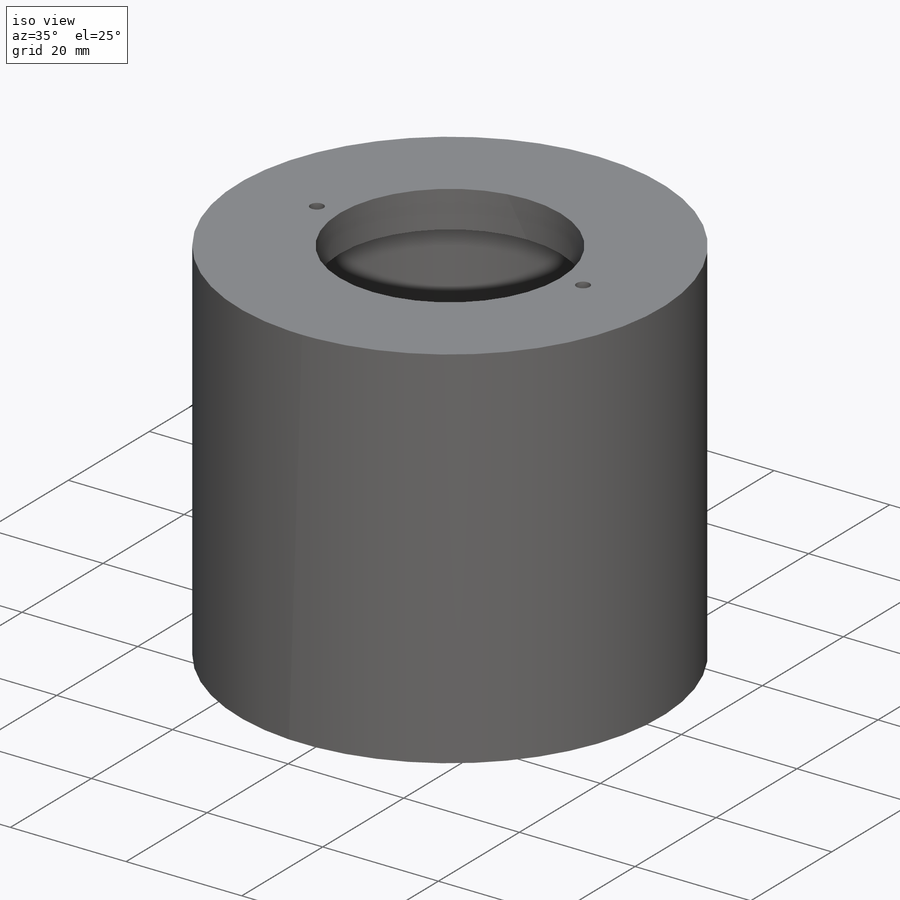
[diagram: iso view]
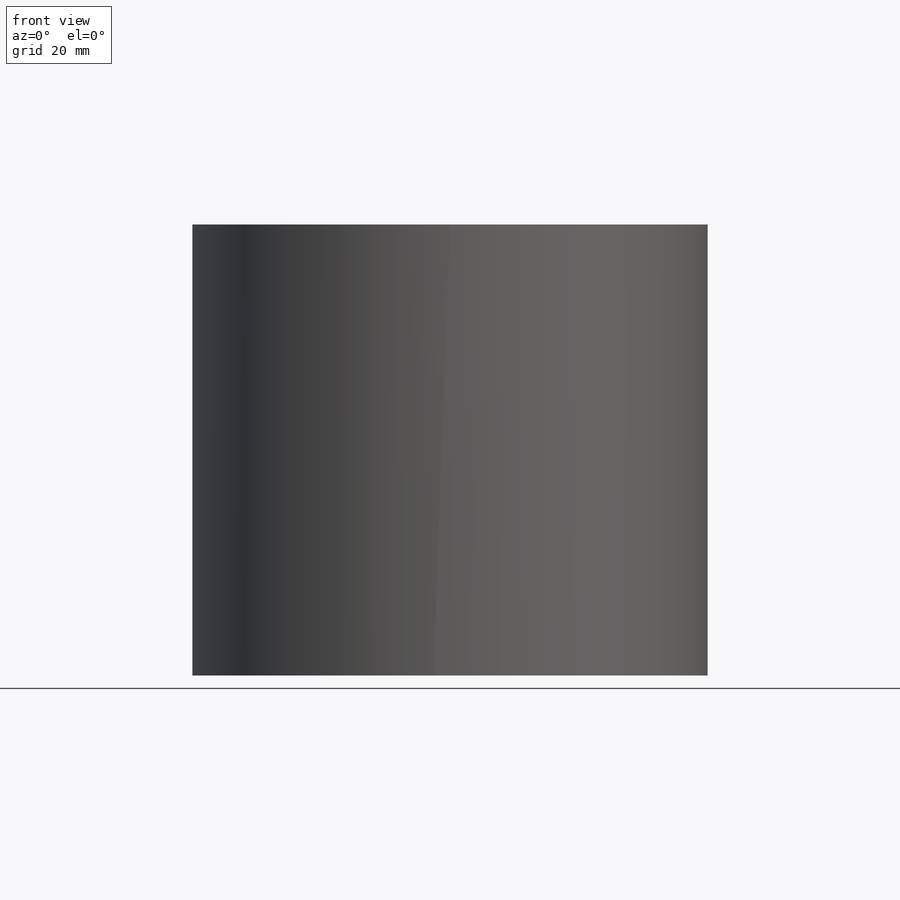
[diagram: front view]
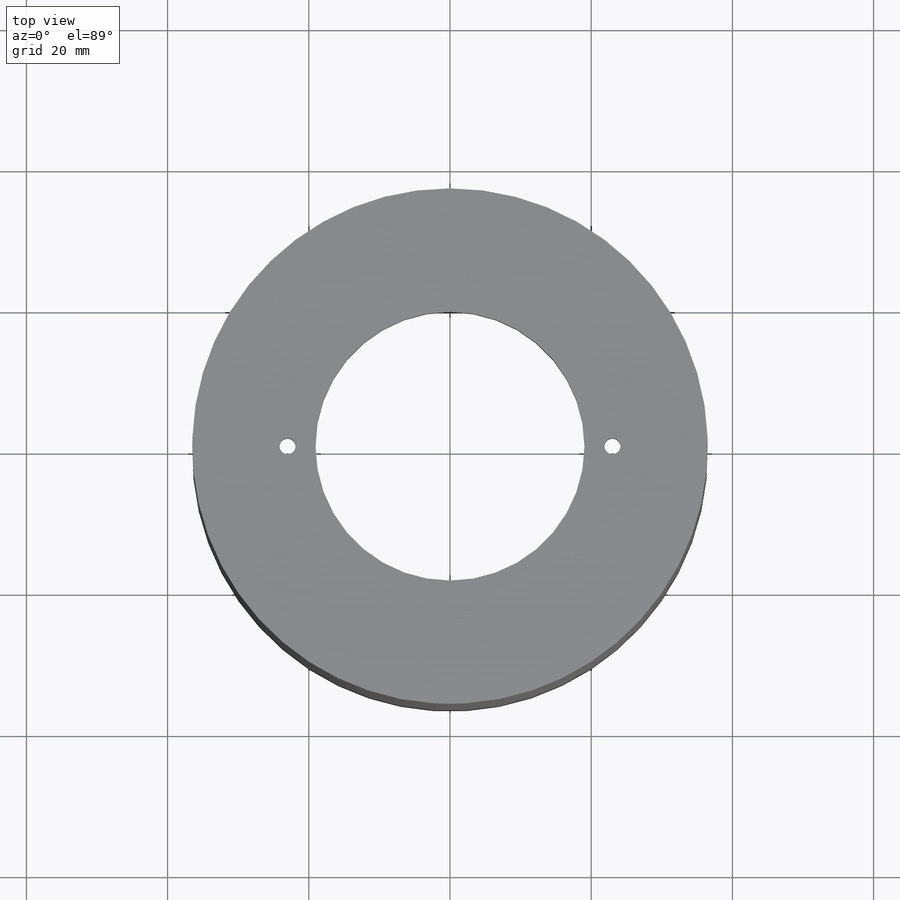
[diagram: top view]
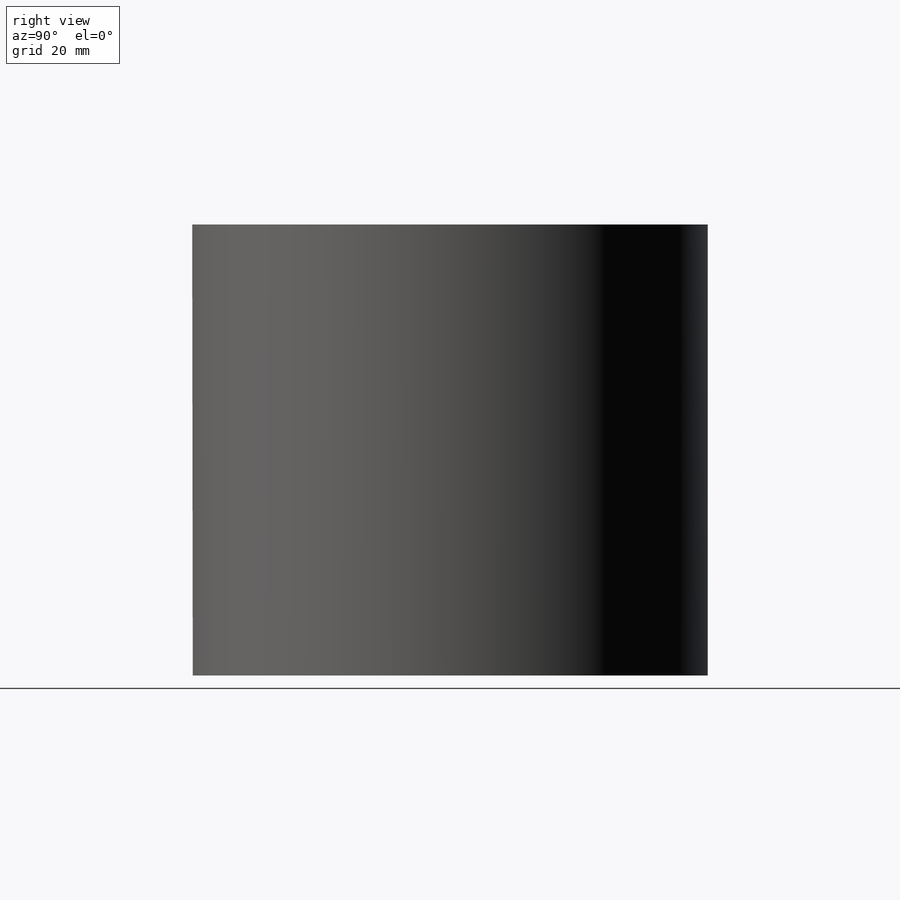
[diagram: right view]
SOLIDWORKS PART (.sldprt)
format: sldprt  version: not decoded by parser v0  size: 256,000 bytes
history: native  units: mm
features: sketch x8, extrude x5, cut_extrude x3, plane x2, thread x2, material x1, shell x1, boolean_combine x1 (+11 scaffold rows collapsed)
feature tree (34):
  scaffold x11  (default folders/planes/origin — collapsed)
  material  "Delrin 2700 NC010, Low Viscosity Acetal Copolymer (SS)"
  sketch  "Sketch1"  dims[D1=66.675mm D2=3.175mm]
  extrude  "Boss-Extrude1"  Depth=51.435mm
  sketch  "Sketch6"  dims[D1=0.0mm D2=0.0mm]
  extrude  "Boss-Extrude5"  Depth=6.096mm
  plane  "Plane2"  Offset=29.21mm
  sketch  "Sketch12"  dims[D1=50.8mm D2=0.0mm]
  extrude  "Boss-Extrude8"  [1 undecoded]
  sketch  "Sketch2"  dims[D1=38.1mm D2=0.0mm]
  extrude  "Boss-Extrude2"  Depth=6.35mm
  plane  "Plane1"  Offset=24.765mm
  sketch  "Sketch4"  dims[D1=53.8988mm]
  cut_extrude  "Cut-Extrude1"  Depth=1.7272mm
  sketch  "Sketch5"  dims[D1=2.2606mm D2=46.0248mm D3=23.0124mm D4=6.35mm D5=3.175mm D6=3.175mm]
  cut_extrude  "Cut-Extrude5"  [1 undecoded]
  thread  "Cosmetic Thread1"  Diameter=2.8448mm  [1 undecoded]
  thread  "Cosmetic Thread2"  Diameter=2.8448mm  [1 undecoded]
  sketch  "Sketch7"  dims[D1=101.6mm D2=457.2mm D3=0.0mm]
  extrude  "Boss-Extrude6"  Depth=38.1mm
  shell  "Shell3"  Thickness=3.175mm
  sketch  "Sketch11"  dims[D1=0.0mm]
  cut_extrude  "Cut-Extrude4"  [1 undecoded]
  boolean_combine  "Combine2"
decode coverage: 16 of 20 modeling features carry decoded parameters
note: 5 parameter values undecoded
summary: no parameter record found for 3 features
note: suppression state not decoded; provenance and decode notes live in map.json
